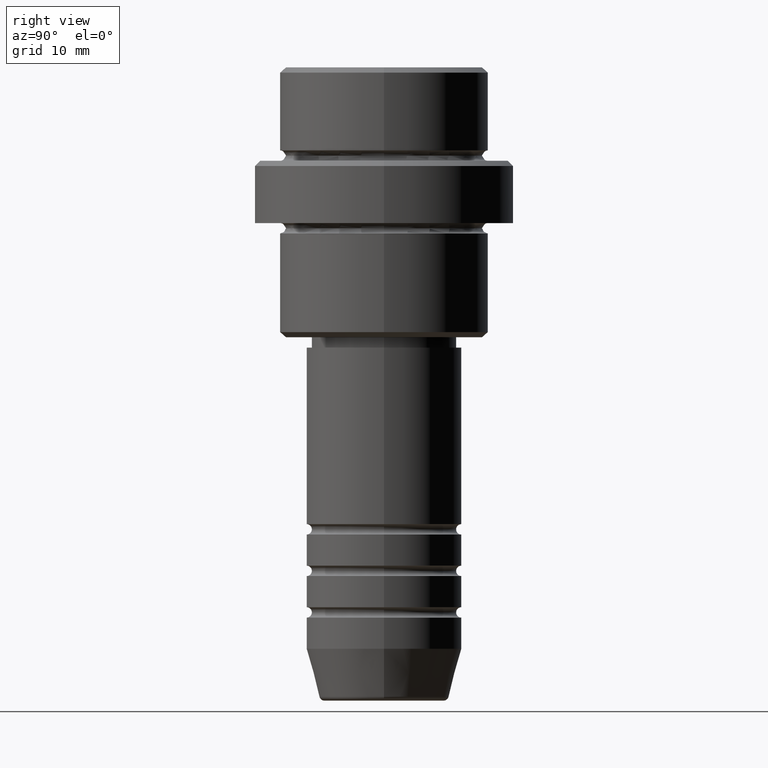
[diagram: clean part render]
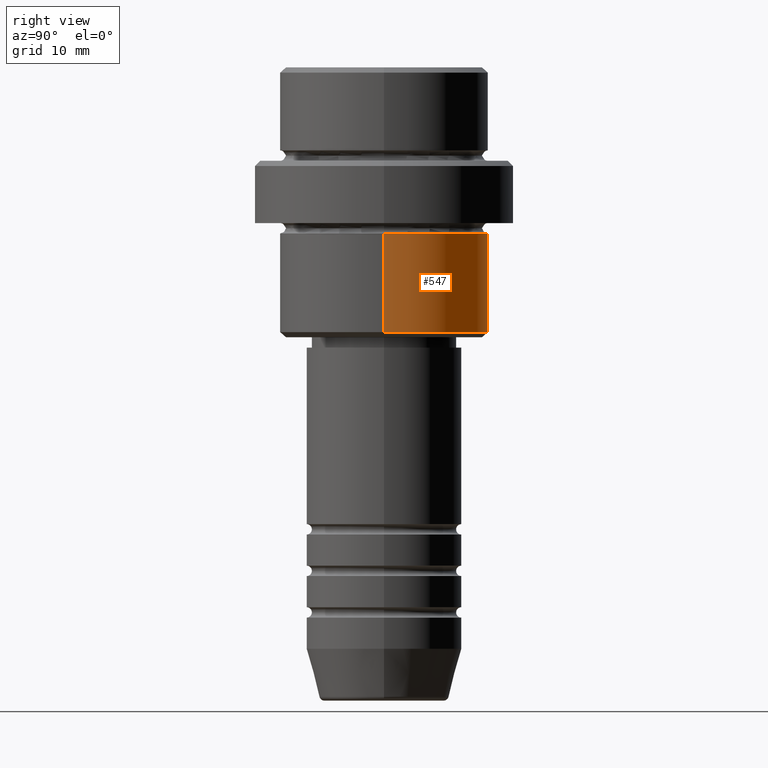
[diagram: same view with one face highlighted and labeled with its STEP entity id]
A machine part, right view. The second image highlights one B-rep face of the part: STEP entity #547.
In plain terms, the highlighted cylindrical surface (partial cylindrical patch) has radius 10 mm, axis along (-0, -0, 1).
Its self-contained STEP definition (entity closure, byte-faithful):
#50 = EDGE_CURVE ( 'NONE', #286, #383, #440, .T. ) ;
#85 = AXIS2_PLACEMENT_3D ( 'NONE', #195, #235, #647 ) ;
#87 = AXIS2_PLACEMENT_3D ( 'NONE', #1084, #1253, #840 ) ;
#195 = CARTESIAN_POINT ( 'NONE',  ( 0.000000000000000000, 0.000000000000000000, -25.50000000000001421 ) ) ;
#235 = DIRECTION ( 'NONE',  ( -0.000000000000000000, -0.000000000000000000, 1.000000000000000000 ) ) ;
#286 = VERTEX_POINT ( 'NONE', #1261 ) ;
#301 = CARTESIAN_POINT ( 'NONE',  ( -10.00000000000000000, 1.224646799147353256E-15, 0.000000000000000000 ) ) ;
#338 = CYLINDRICAL_SURFACE ( 'NONE', #1133, 10.00000000000000000 ) ;
#383 = VERTEX_POINT ( 'NONE', #1041 ) ;
#440 = CIRCLE ( 'NONE', #87, 10.00000000000000000 ) ;
#444 = EDGE_CURVE ( 'NONE', #633, #286, #1369, .T. ) ;
#467 = DIRECTION ( 'NONE',  ( 1.000000000000000000, 0.000000000000000000, 0.000000000000000000 ) ) ;
#518 = DIRECTION ( 'NONE',  ( -0.000000000000000000, -0.000000000000000000, 1.000000000000000000 ) ) ;
#547 = ADVANCED_FACE ( 'NONE', ( #754 ), #338, .T. ) ;
#566 = VECTOR ( 'NONE', #518, 1000.000000000000000 ) ;
#590 = CARTESIAN_POINT ( 'NONE',  ( 10.00000000000000000, 0.000000000000000000, 0.000000000000000000 ) ) ;
#605 = DIRECTION ( 'NONE',  ( -0.000000000000000000, -0.000000000000000000, 1.000000000000000000 ) ) ;
#633 = VERTEX_POINT ( 'NONE', #978 ) ;
#647 = DIRECTION ( 'NONE',  ( -1.000000000000000000, 0.000000000000000000, 0.000000000000000000 ) ) ;
#754 = FACE_OUTER_BOUND ( 'NONE', #1379, .T. ) ;
#760 = CARTESIAN_POINT ( 'NONE',  ( 0.000000000000000000, 0.000000000000000000, 0.000000000000000000 ) ) ;
#828 = LINE ( 'NONE', #301, #1378 ) ;
#832 = ORIENTED_EDGE ( 'NONE', *, *, #892, .T. ) ;
#834 = CIRCLE ( 'NONE', #85, 10.00000000000000000 ) ;
#840 = DIRECTION ( 'NONE',  ( 1.000000000000000000, 0.000000000000000000, 0.000000000000000000 ) ) ;
#892 = EDGE_CURVE ( 'NONE', #633, #965, #834, .T. ) ;
#965 = VERTEX_POINT ( 'NONE', #1145 ) ;
#978 = CARTESIAN_POINT ( 'NONE',  ( 10.00000000000000000, 0.000000000000000000, -25.50000000000001421 ) ) ;
#999 = ORIENTED_EDGE ( 'NONE', *, *, #444, .F. ) ;
#1041 = CARTESIAN_POINT ( 'NONE',  ( -10.00000000000000000, 1.224646799147353256E-15, -16.00000000000000000 ) ) ;
#1051 = DIRECTION ( 'NONE',  ( -0.000000000000000000, -0.000000000000000000, 1.000000000000000000 ) ) ;
#1084 = CARTESIAN_POINT ( 'NONE',  ( 0.000000000000000000, 0.000000000000000000, -16.00000000000000000 ) ) ;
#1133 = AXIS2_PLACEMENT_3D ( 'NONE', #760, #605, #467 ) ;
#1138 = ORIENTED_EDGE ( 'NONE', *, *, #50, .F. ) ;
#1145 = CARTESIAN_POINT ( 'NONE',  ( -10.00000000000000000, 1.224646799147353256E-15, -25.50000000000001421 ) ) ;
#1253 = DIRECTION ( 'NONE',  ( -0.000000000000000000, -0.000000000000000000, 1.000000000000000000 ) ) ;
#1261 = CARTESIAN_POINT ( 'NONE',  ( 10.00000000000000000, 0.000000000000000000, -16.00000000000000000 ) ) ;
#1340 = EDGE_CURVE ( 'NONE', #965, #383, #828, .T. ) ;
#1362 = ORIENTED_EDGE ( 'NONE', *, *, #1340, .T. ) ;
#1369 = LINE ( 'NONE', #590, #566 ) ;
#1378 = VECTOR ( 'NONE', #1051, 1000.000000000000000 ) ;
#1379 = EDGE_LOOP ( 'NONE', ( #832, #1362, #1138, #999 ) ) ;